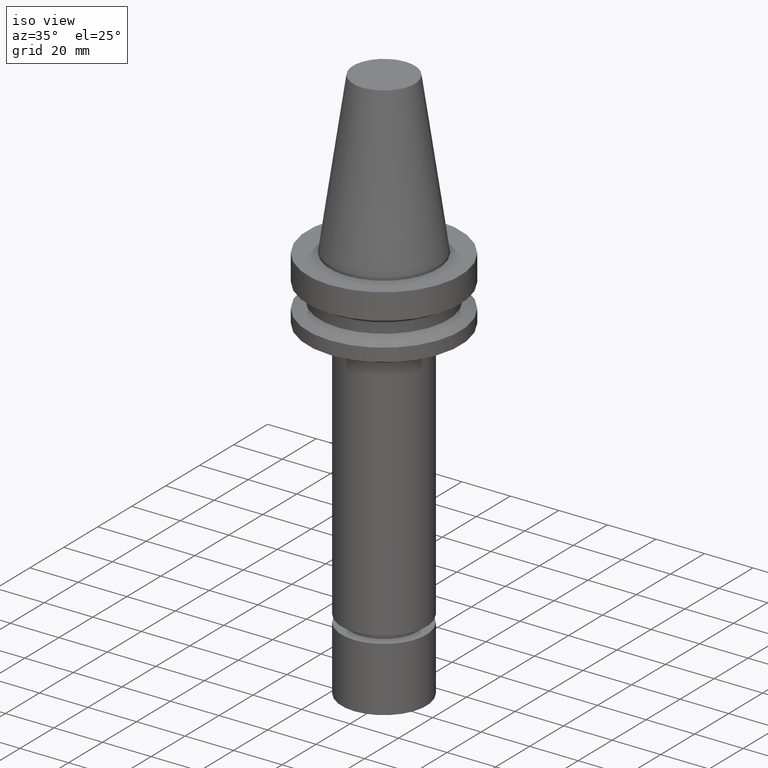
[diagram: clean part render]
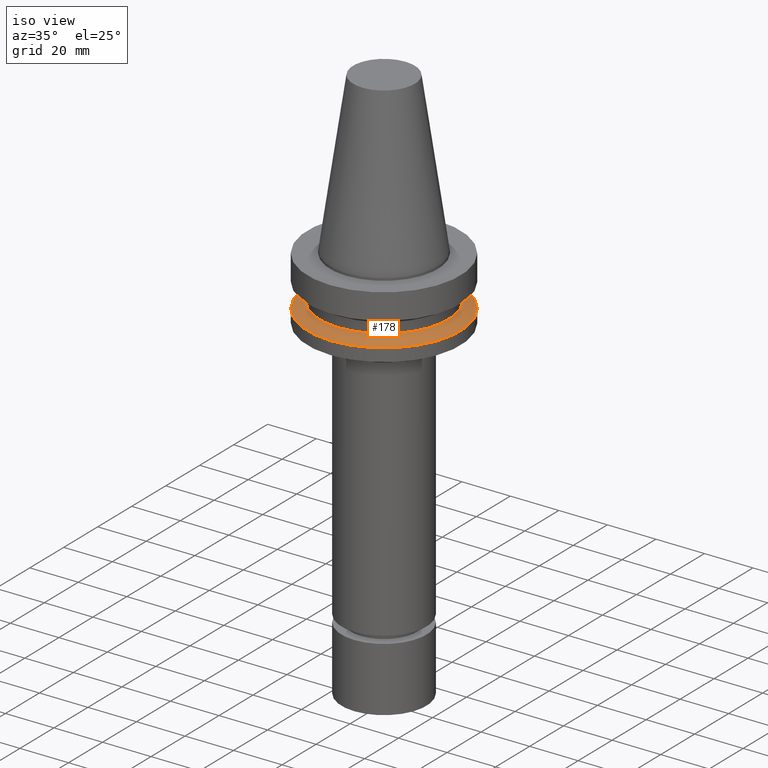
[diagram: same view with one face highlighted and labeled with its STEP entity id]
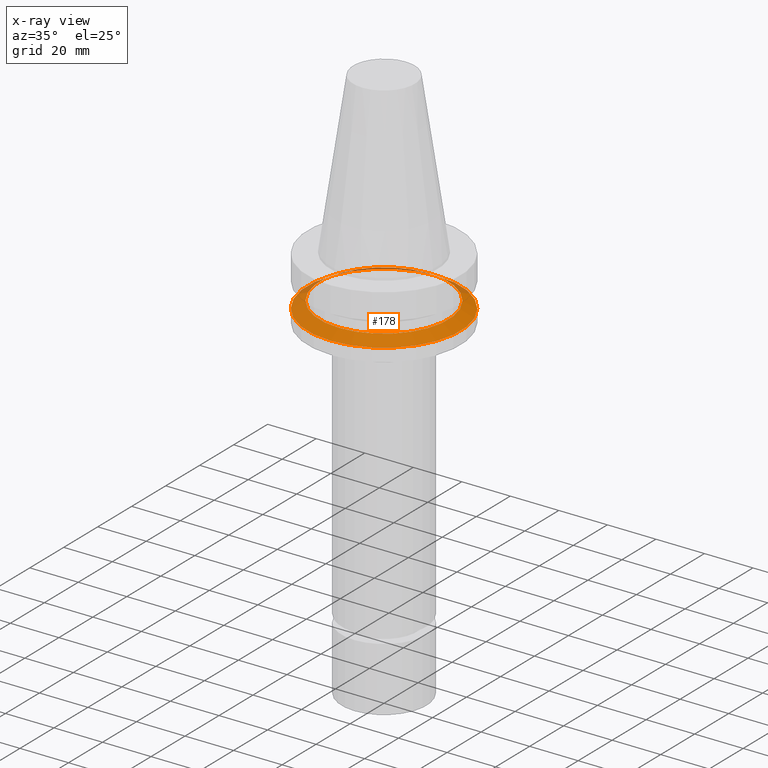
[diagram: x-ray of the same camera — body ghosted, the highlighted face saturated]
A machine part, iso view. The second image highlights one B-rep face of the part: STEP entity #178.
The next image is the same camera in x-ray: the body ghosted, the highlighted face saturated — about 8% of this face is hidden behind the body in this view.
In plain terms, the highlighted conical surface has half-angle 60 deg.
Its self-contained STEP definition (entity closure, byte-faithful):
#126=EDGE_CURVE('Unnamed[1]',#280,#280,#281,.T.);
#141=EDGE_CURVE('Unnamed[1]',#302,#302,#303,.T.);
#178=ADVANCED_FACE('Unnamed[1]',(#358,#359),#360,.T.);
#280=VERTEX_POINT('',#476);
#281=CIRCLE('',#477,31.5000000000006);
#302=VERTEX_POINT('',#503);
#303=CIRCLE('',#504,26.5);
#358=FACE_BOUND('',#572,.T.);
#359=FACE_BOUND('',#573,.T.);
#360=CONICAL_SURFACE('',#574,29.0000000000003,1.04719755119651);
#476=CARTESIAN_POINT('',(1.32473071268174E-015,31.5000000000007,-21.6344943473346));
#477=AXIS2_PLACEMENT_3D('',#670,#671,#672);
#503=CARTESIAN_POINT('',(1.1479681728942E-015,26.5,-18.7477430013855));
#504=AXIS2_PLACEMENT_3D('',#692,#693,#694);
#572=EDGE_LOOP('',(#753));
#573=EDGE_LOOP('',(#754));
#574=AXIS2_PLACEMENT_3D('',#755,#756,#757);
#670=CARTESIAN_POINT('',(1.32473071268174E-015,7.13344123956028E-014,-21.6344943473347));
#671=DIRECTION('',(6.12323399573677E-017,-6.62687154769284E-017,-1.0));
#672=DIRECTION('',(-7.69364216147668E-034,1.0,-6.62687154769284E-017));
#692=CARTESIAN_POINT('',(1.1479681728942E-015,7.15257136992001E-014,-18.7477430013855));
#693=DIRECTION('',(6.12323399573677E-017,-6.62687154769284E-017,-1.0));
#694=DIRECTION('',(-7.69364216147669E-034,1.0,-6.62687154769284E-017));
#753=ORIENTED_EDGE('',*,*,#126,.F.);
#754=ORIENTED_EDGE('',*,*,#141,.T.);
#755=CARTESIAN_POINT('',(1.23634944278797E-015,7.14300630474014E-014,-20.1911186743601));
#756=DIRECTION('',(6.12323399573677E-017,-6.62687154769284E-017,-1.0));
#757=DIRECTION('',(-7.69364216147669E-034,1.0,-6.62687154769284E-017));